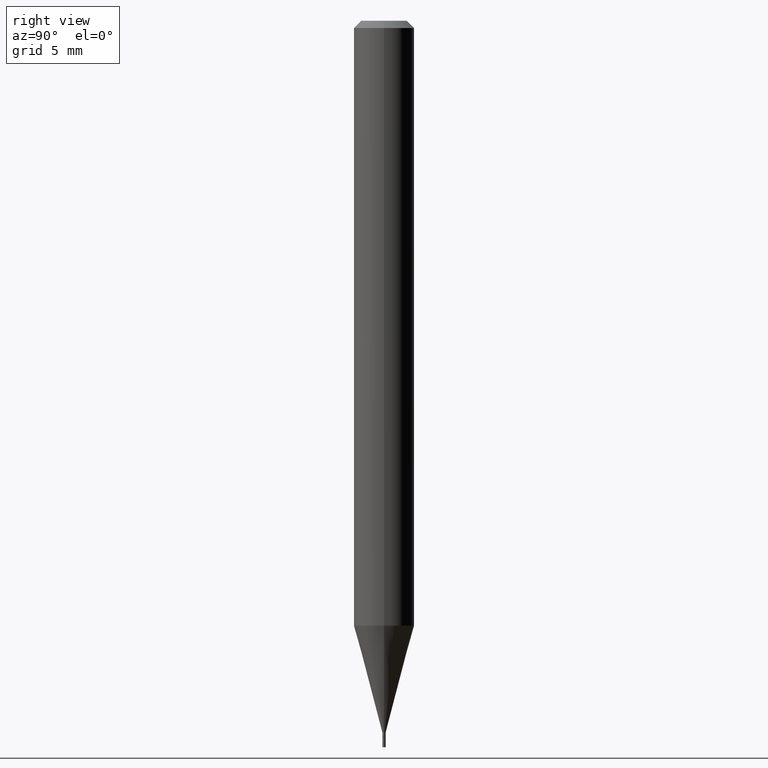
[diagram: clean part render]
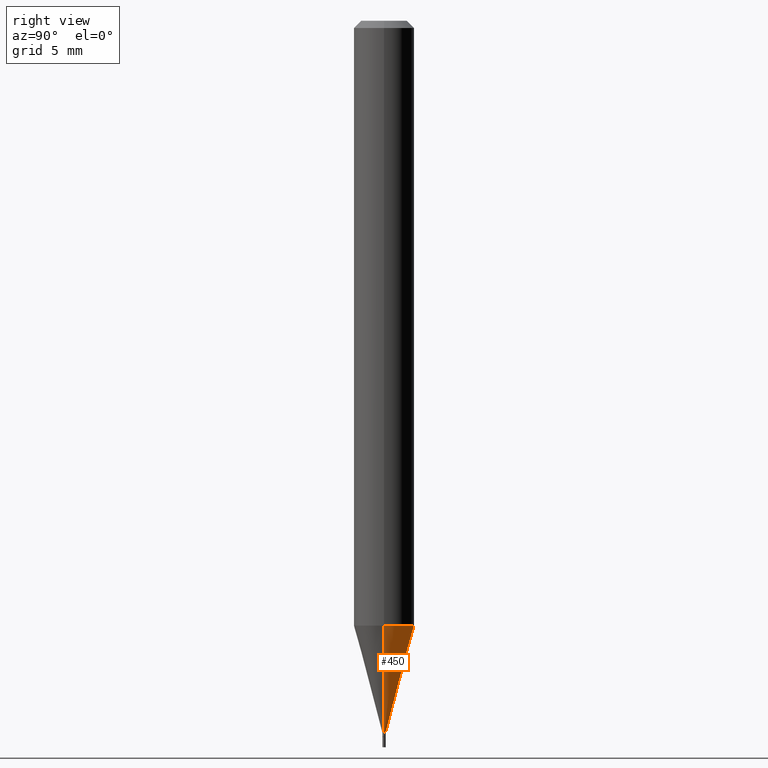
[diagram: same view with one face highlighted and labeled with its STEP entity id]
A machine part, right view. The second image highlights one B-rep face of the part: STEP entity #450.
In plain terms, the highlighted conical surface has half-angle 15 deg.
Its self-contained STEP definition (entity closure, byte-faithful):
#5 = CARTESIAN_POINT ( 'NONE',  ( 3.053923460138509831E-29, -4.360193327496349299E-15, -1.248809002353436615 ) ) ;
#36 = DIRECTION ( 'NONE',  ( -0.2588190451025213501, 5.211531920934551042E-15, 0.9659258262890682012 ) ) ;
#43 = DIRECTION ( 'NONE',  ( 1.000000000000000000, -6.982962677686349541E-15, 0.000000000000000000 ) ) ;
#51 = CARTESIAN_POINT ( 'NONE',  ( 0.06250000000000001388, -4.796628494851741757E-15, -1.248809002353436615 ) ) ;
#56 = VECTOR ( 'NONE', #36, 39.37007874015747433 ) ;
#71 = LINE ( 'NONE', #212, #229 ) ;
#109 = CIRCLE ( 'NONE', #334, 0.06250000000000000000 ) ;
#126 = DIRECTION ( 'NONE',  ( 1.000000000000000000, -6.982962677686349541E-15, 0.000000000000000000 ) ) ;
#135 = EDGE_CURVE ( 'NONE', #201, #238, #109, .T. ) ;
#141 = CARTESIAN_POINT ( 'NONE',  ( -0.06250000000000001388, -3.916104117646285894E-15, -1.248809002353436615 ) ) ;
#148 = DIRECTION ( 'NONE',  ( -2.445468806185136597E-29, 3.491481338843145583E-15, 1.000000000000000000 ) ) ;
#162 = ORIENTED_EDGE ( 'NONE', *, *, #446, .T. ) ;
#169 = ORIENTED_EDGE ( 'NONE', *, *, #135, .F. ) ;
#174 = CARTESIAN_POINT ( 'NONE',  ( 3.592393676285966338E-29, -5.128986086760581011E-15, -1.469000000000000083 ) ) ;
#191 = AXIS2_PLACEMENT_3D ( 'NONE', #174, #203, #126 ) ;
#201 = VERTEX_POINT ( 'NONE', #51 ) ;
#203 = DIRECTION ( 'NONE',  ( -2.445468806185136597E-29, 3.491481338843145583E-15, 1.000000000000000000 ) ) ;
#208 = VERTEX_POINT ( 'NONE', #328 ) ;
#212 = CARTESIAN_POINT ( 'NONE',  ( 0.003499999999999922010, -5.153426456132482850E-15, -1.469000000000000083 ) ) ;
#220 = LINE ( 'NONE', #329, #56 ) ;
#229 = VECTOR ( 'NONE', #318, 39.37007874015747433 ) ;
#238 = VERTEX_POINT ( 'NONE', #141 ) ;
#242 = ORIENTED_EDGE ( 'NONE', *, *, #374, .T. ) ;
#261 = ORIENTED_EDGE ( 'NONE', *, *, #324, .F. ) ;
#265 = FACE_OUTER_BOUND ( 'NONE', #267, .T. ) ;
#267 = EDGE_LOOP ( 'NONE', ( #162, #242, #169, #261 ) ) ;
#268 = DIRECTION ( 'NONE',  ( 1.000000000000000000, -6.982962677686270655E-15, 0.000000000000000000 ) ) ;
#283 = CARTESIAN_POINT ( 'NONE',  ( 0.003499999999999922010, -5.153426456132482850E-15, -1.469000000000000083 ) ) ;
#300 = AXIS2_PLACEMENT_3D ( 'NONE', #343, #148, #43 ) ;
#301 = CONICAL_SURFACE ( 'NONE', #300, 0.003499999999999922010, 0.2617993877991500740 ) ;
#305 = VERTEX_POINT ( 'NONE', #283 ) ;
#318 = DIRECTION ( 'NONE',  ( 0.2588190451025213501, 1.565188264969621968E-15, 0.9659258262890682012 ) ) ;
#324 = EDGE_CURVE ( 'NONE', #305, #201, #71, .T. ) ;
#328 = CARTESIAN_POINT ( 'NONE',  ( -0.003499999999999922010, -4.510110604327631885E-15, -1.469000000000000083 ) ) ;
#329 = CARTESIAN_POINT ( 'NONE',  ( -0.003499999999999922010, -5.104117091008977877E-15, -1.469000000000000083 ) ) ;
#334 = AXIS2_PLACEMENT_3D ( 'NONE', #5, #408, #268 ) ;
#343 = CARTESIAN_POINT ( 'NONE',  ( 3.592393676285966338E-29, -5.128986086760581011E-15, -1.469000000000000083 ) ) ;
#368 = CIRCLE ( 'NONE', #191, 0.003499999999999922010 ) ;
#374 = EDGE_CURVE ( 'NONE', #208, #238, #220, .T. ) ;
#408 = DIRECTION ( 'NONE',  ( -2.445468806185136597E-29, 3.491481338843145583E-15, 1.000000000000000000 ) ) ;
#446 = EDGE_CURVE ( 'NONE', #305, #208, #368, .T. ) ;
#450 = ADVANCED_FACE ( 'NONE', ( #265 ), #301, .T. ) ;